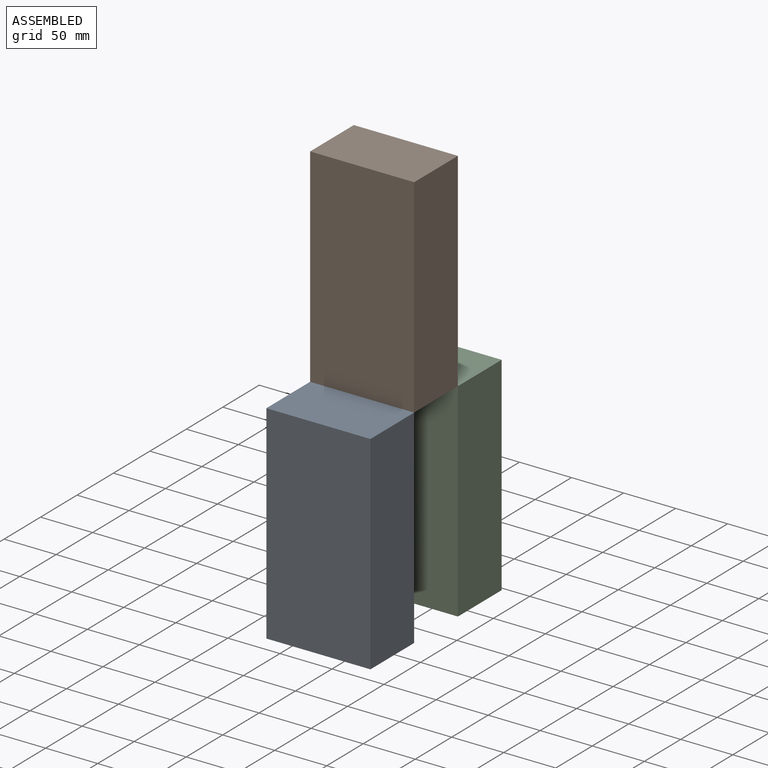
[diagram: assembled view]
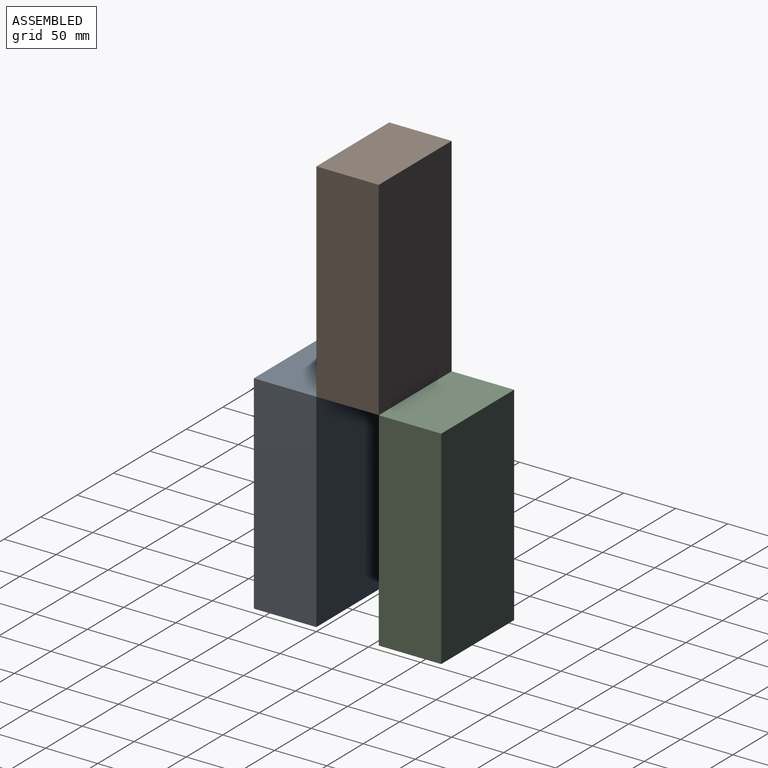
[diagram: assembled view, second angle]
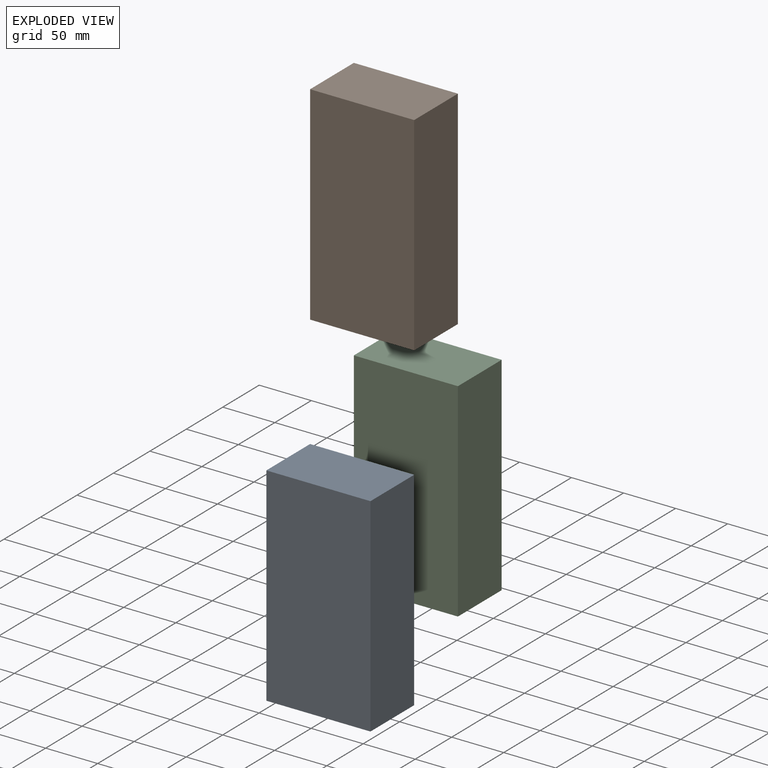
[diagram: exploded view]
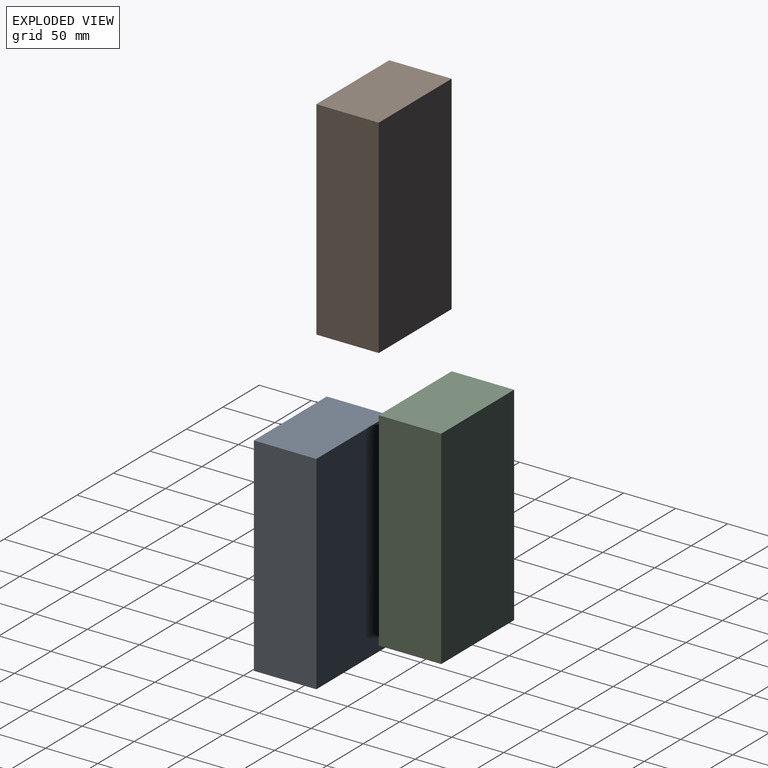
[diagram: exploded view, second angle]
ASSEMBLY  parts=3 mates=2
PART A: 6 faces, bbox 100x60x200 mm
  f0: plane 200x60mm, normal (1,0,0), area 12000mm2, adj f1,f3,f4,f5
  f1: plane 200x100mm, normal (0,1,0), area 20000mm2, adj f0,f2,f4,f5
  f2: plane 200x60mm, normal (-1,0,0), area 12000mm2, adj f1,f3,f4,f5
  f3: plane 200x100mm, normal (0,-1,0), area 20000mm2, adj f0,f2,f4,f5
  f4: plane 100x60mm, normal (0,0,1), area 6000mm2, adj f0,f1,f2,f3
  f5: plane 100x60mm, normal (0,0,-1), area 6000mm2, adj f0,f1,f2,f3
PART B: same geometry as A
PART C: same geometry as A
PLACE A t=(0,-60,-200)mm
PLACE B at identity fixed
PLACE C t=(0,60,-200)mm
MATE slider B.f4 <-> C.f4  axis (0,0,1) through (50,30,200)mm
MATE slider B.f4 <-> A.f4  axis (0,0,1) through (50,-30,200)mm
